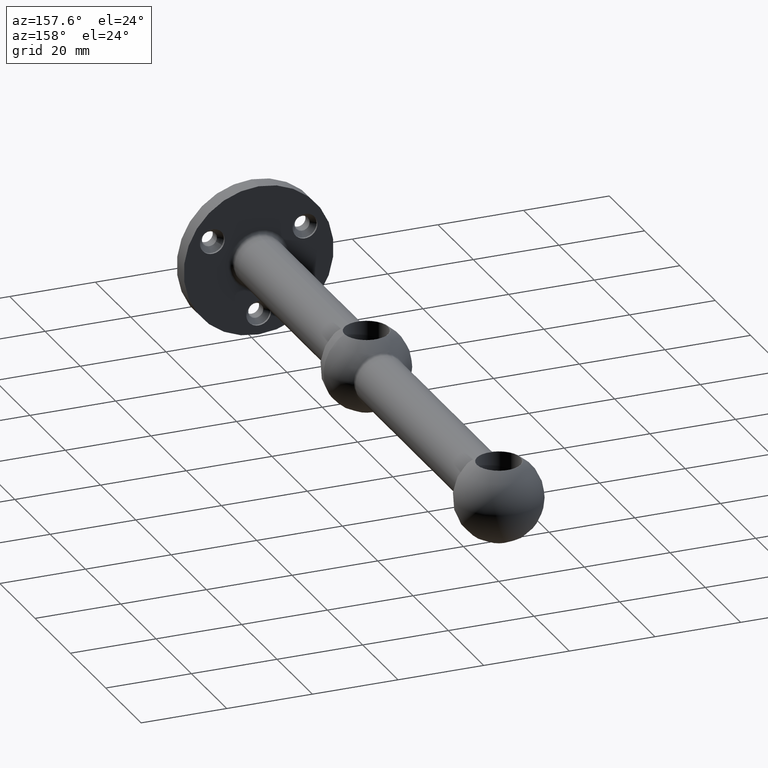
[diagram: clean part render]
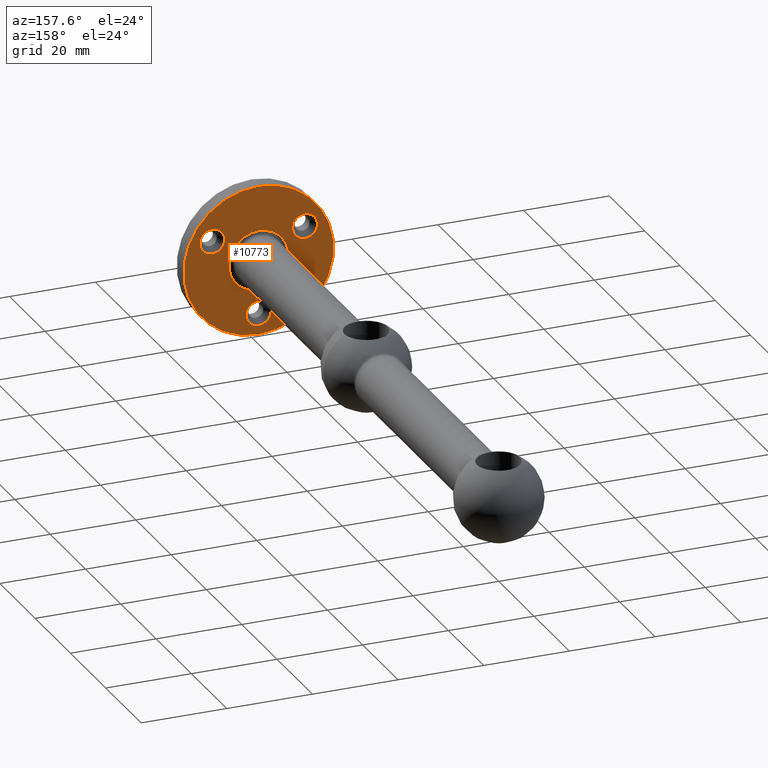
[diagram: same view with one face highlighted and labeled with its STEP entity id]
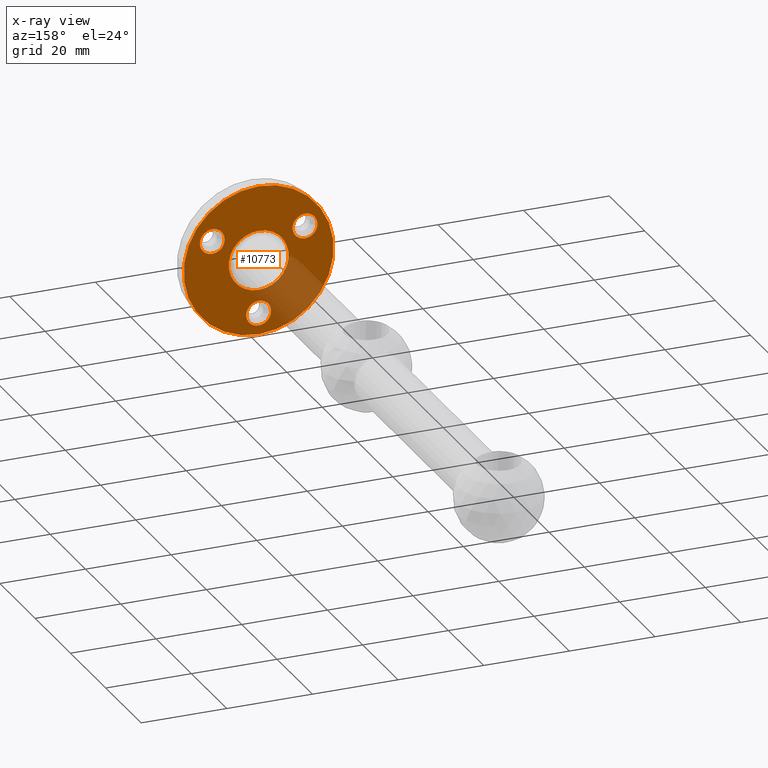
[diagram: x-ray of the same camera — body ghosted, the highlighted face saturated]
A machine part, auxiliary view. The second image highlights one B-rep face of the part: STEP entity #10773.
The next image is the same camera in x-ray: the body ghosted, the highlighted face saturated — about 18% of this face is hidden behind the body in this view.
In plain terms, the highlighted planar face has unit normal (0, 1, 0).
Its self-contained STEP definition (entity closure, byte-faithful):
#32 = EDGE_LOOP ( 'NONE', ( #3866 ) ) ;
#233 = ORIENTED_EDGE ( 'NONE', *, *, #2272, .F. ) ;
#550 = CARTESIAN_POINT ( 'NONE',  ( 0.000000000000000000, 4.000000000000000000, 17.50000000000000000 ) ) ;
#560 = DIRECTION ( 'NONE',  ( 0.000000000000000000, 0.000000000000000000, 1.000000000000000000 ) ) ;
#602 = DIRECTION ( 'NONE',  ( -0.000000000000000000, -1.000000000000000000, -0.000000000000000000 ) ) ;
#689 = CIRCLE ( 'NONE', #3505, 17.50000000000000000 ) ;
#800 = VERTEX_POINT ( 'NONE', #10309 ) ;
#957 = DIRECTION ( 'NONE',  ( 0.000000000000000000, 1.000000000000000000, 0.000000000000000000 ) ) ;
#958 = CIRCLE ( 'NONE', #8489, 2.900000000000000799 ) ;
#971 = CIRCLE ( 'NONE', #3578, 2.899999999999999911 ) ;
#1020 = CIRCLE ( 'NONE', #2917, 7.000000000000001776 ) ;
#1533 = CARTESIAN_POINT ( 'NONE',  ( 0.000000000000000000, 4.000000000000000000, -9.600000000000001421 ) ) ;
#1687 = VERTEX_POINT ( 'NONE', #550 ) ;
#2272 = EDGE_CURVE ( 'NONE', #5606, #5606, #5172, .T. ) ;
#2389 = CARTESIAN_POINT ( 'NONE',  ( 0.000000000000000000, 4.000000000000000000, 0.000000000000000000 ) ) ;
#2406 = CARTESIAN_POINT ( 'NONE',  ( -10.82531754730554141, 4.000000000000000000, 6.249999999999899636 ) ) ;
#2463 = DIRECTION ( 'NONE',  ( 0.000000000000000000, 1.000000000000000000, 0.000000000000000000 ) ) ;
#2630 = CARTESIAN_POINT ( 'NONE',  ( -8.313843876330656357, 4.000000000000000000, 4.799999999999923439 ) ) ;
#2882 = DIRECTION ( 'NONE',  ( 0.000000000000000000, -0.000000000000000000, 1.000000000000000000 ) ) ;
#2917 = AXIS2_PLACEMENT_3D ( 'NONE', #2389, #602, #10152 ) ;
#3134 = EDGE_LOOP ( 'NONE', ( #9737 ) ) ;
#3505 = AXIS2_PLACEMENT_3D ( 'NONE', #10791, #957, #11720 ) ;
#3545 = CARTESIAN_POINT ( 'NONE',  ( 0.000000000000000000, 4.000000000000000000, -12.50000000000000000 ) ) ;
#3578 = AXIS2_PLACEMENT_3D ( 'NONE', #3545, #4338, #560 ) ;
#3835 = FACE_BOUND ( 'NONE', #3134, .T. ) ;
#3866 = ORIENTED_EDGE ( 'NONE', *, *, #8172, .T. ) ;
#4338 = DIRECTION ( 'NONE',  ( -0.000000000000000000, 1.000000000000000000, -0.000000000000000000 ) ) ;
#4865 = EDGE_CURVE ( 'NONE', #9108, #9108, #958, .T. ) ;
#5172 = CIRCLE ( 'NONE', #8175, 2.899999999999999467 ) ;
#5418 = ORIENTED_EDGE ( 'NONE', *, *, #10772, .T. ) ;
#5606 = VERTEX_POINT ( 'NONE', #2630 ) ;
#5629 = FACE_OUTER_BOUND ( 'NONE', #8421, .T. ) ;
#6338 = CARTESIAN_POINT ( 'NONE',  ( 8.313843876330590632, 4.000000000000000000, 4.800000000000039790 ) ) ;
#6519 = VERTEX_POINT ( 'NONE', #1533 ) ;
#6715 = CARTESIAN_POINT ( 'NONE',  ( 0.000000000000000000, 4.000000000000000000, 0.000000000000000000 ) ) ;
#6756 = PLANE ( 'NONE',  #8685 ) ;
#6839 = ORIENTED_EDGE ( 'NONE', *, *, #4865, .F. ) ;
#6908 = EDGE_CURVE ( 'NONE', #6519, #6519, #971, .T. ) ;
#7160 = DIRECTION ( 'NONE',  ( -0.8660254037844362651, 0.000000000000000000, -0.5000000000000039968 ) ) ;
#8096 = FACE_BOUND ( 'NONE', #9033, .T. ) ;
#8141 = DIRECTION ( 'NONE',  ( 0.8660254037844432595, 0.000000000000000000, -0.4999999999999919509 ) ) ;
#8172 = EDGE_CURVE ( 'NONE', #800, #800, #1020, .T. ) ;
#8175 = AXIS2_PLACEMENT_3D ( 'NONE', #2406, #9216, #8141 ) ;
#8421 = EDGE_LOOP ( 'NONE', ( #5418 ) ) ;
#8489 = AXIS2_PLACEMENT_3D ( 'NONE', #9193, #2463, #7160 ) ;
#8685 = AXIS2_PLACEMENT_3D ( 'NONE', #6715, #10658, #2882 ) ;
#9033 = EDGE_LOOP ( 'NONE', ( #6839 ) ) ;
#9108 = VERTEX_POINT ( 'NONE', #6338 ) ;
#9193 = CARTESIAN_POINT ( 'NONE',  ( 10.82531754730545792, 4.000000000000000000, 6.250000000000051514 ) ) ;
#9216 = DIRECTION ( 'NONE',  ( 0.000000000000000000, 1.000000000000000000, 0.000000000000000000 ) ) ;
#9737 = ORIENTED_EDGE ( 'NONE', *, *, #6908, .F. ) ;
#10152 = DIRECTION ( 'NONE',  ( 0.000000000000000000, 0.000000000000000000, 1.000000000000000000 ) ) ;
#10309 = CARTESIAN_POINT ( 'NONE',  ( 0.000000000000000000, 4.000000000000000000, 7.000000000000001776 ) ) ;
#10658 = DIRECTION ( 'NONE',  ( 0.000000000000000000, 1.000000000000000000, 0.000000000000000000 ) ) ;
#10682 = FACE_BOUND ( 'NONE', #32, .T. ) ;
#10772 = EDGE_CURVE ( 'NONE', #1687, #1687, #689, .T. ) ;
#10773 = ADVANCED_FACE ( 'NONE', ( #10682, #12371, #8096, #3835, #5629 ), #6756, .T. ) ;
#10791 = CARTESIAN_POINT ( 'NONE',  ( 0.000000000000000000, 4.000000000000000000, 0.000000000000000000 ) ) ;
#11048 = EDGE_LOOP ( 'NONE', ( #233 ) ) ;
#11720 = DIRECTION ( 'NONE',  ( 0.000000000000000000, 0.000000000000000000, 1.000000000000000000 ) ) ;
#12371 = FACE_BOUND ( 'NONE', #11048, .T. ) ;